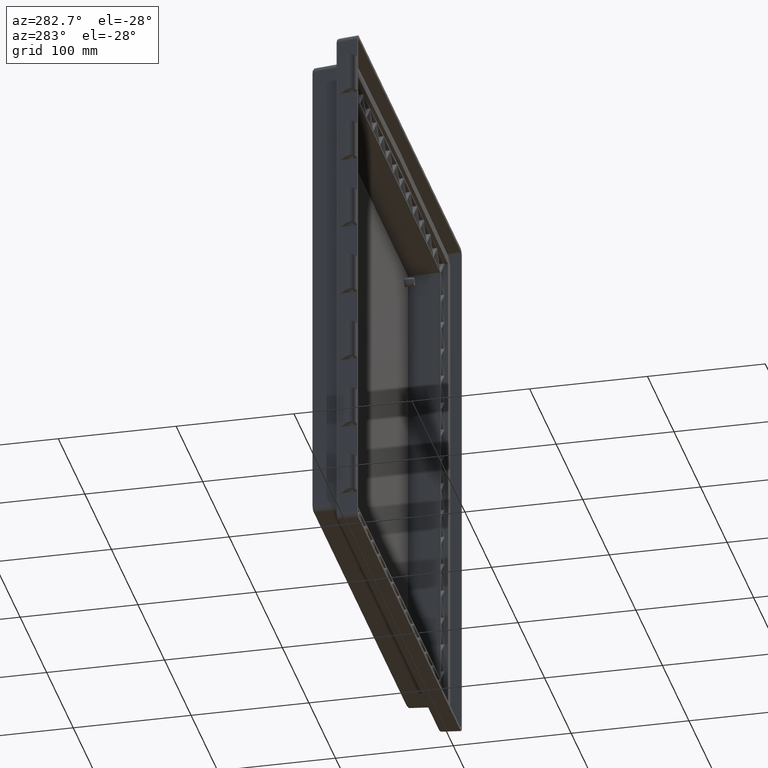
[diagram: clean part render]
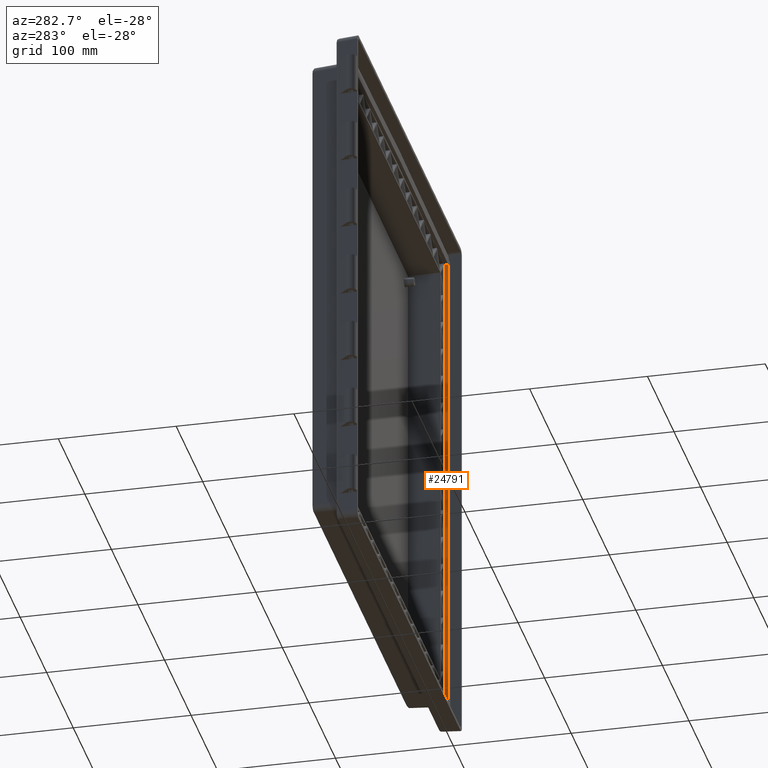
[diagram: same view with one face highlighted and labeled with its STEP entity id]
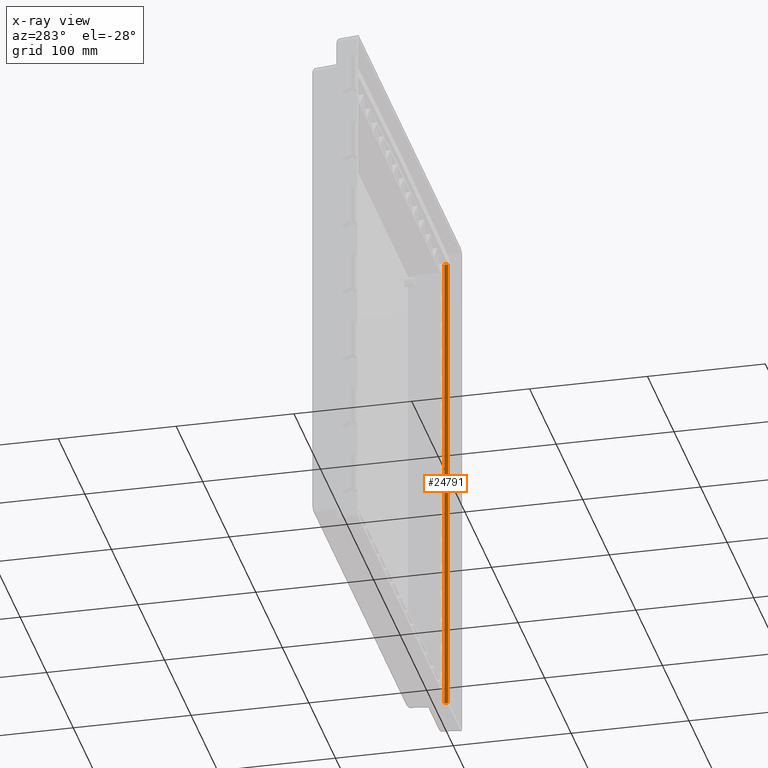
[diagram: x-ray of the same camera — body ghosted, the highlighted face saturated]
A machine part, auxiliary view. The second image highlights one B-rep face of the part: STEP entity #24791.
The next image is the same camera in x-ray: the body ghosted, the highlighted face saturated — about 0% of this face is hidden behind the body in this view.
In plain terms, the highlighted planar face has unit normal (1, 0, -0).
Its self-contained STEP definition (entity closure, byte-faithful):
#13902 = DIRECTION ( 'NONE',  ( 0.0000000000000000000, -1.000000000000000000, 0.0000000000000000000 ) ) ;
#13903 = VECTOR ( 'NONE', #13902, 1000.000000000000000 ) ;
#13904 = CARTESIAN_POINT ( 'NONE',  ( 179.9694821496557000, 500000.0000000000600, 205.5977549835308500 ) ) ;
#13905 = LINE ( 'NONE', #13904, #13903 ) ;
#13906 = CARTESIAN_POINT ( 'NONE',  ( 179.9694821496557000, 0.0000000000000000000, 205.5977549835308500 ) ) ;
#13907 = DIRECTION ( 'NONE',  ( 0.0000000000000000000, 0.0000000000000000000, 1.000000000000000000 ) ) ;
#13908 = VECTOR ( 'NONE', #13907, 1000.000000000000000 ) ;
#13909 = CARTESIAN_POINT ( 'NONE',  ( 179.9694821496557000, 0.0000000000000000000, -205.6016638847296500 ) ) ;
#13915 = LINE ( 'NONE', #13909, #13908 ) ;
#13916 = DIRECTION ( 'NONE',  ( -0.0000000000000000000, 0.0000000000000000000, -1.000000000000000000 ) ) ;
#13917 = DIRECTION ( 'NONE',  ( 1.000000000000000000, 0.0000000000000000000, -0.0000000000000000000 ) ) ;
#13918 = AXIS2_PLACEMENT_3D ( 'NONE', #13919, #13917, #13916 ) ;
#13919 = CARTESIAN_POINT ( 'NONE',  ( 179.9694821496557000, 500000.0000000000600, -205.6016638847296500 ) ) ;
#13920 = PLANE ( 'NONE',  #13918 ) ;
#13925 = FACE_OUTER_BOUND ( 'NONE', #24792, .T. ) ;
#13977 = CARTESIAN_POINT ( 'NONE',  ( 179.9694821496557000, 0.0000000000000000000, -205.6016638847296500 ) ) ;
#13978 = DIRECTION ( 'NONE',  ( 0.0000000000000000000, -1.000000000000000000, 0.0000000000000000000 ) ) ;
#13979 = VECTOR ( 'NONE', #13978, 1000.000000000000000 ) ;
#13980 = CARTESIAN_POINT ( 'NONE',  ( 179.9694821496557000, 500000.0000000000600, -205.6016638847296500 ) ) ;
#13981 = LINE ( 'NONE', #13980, #13979 ) ;
#18647 = EDGE_CURVE ( 'NONE', #18648, #18649, #31149, .T. ) ;
#18648 = VERTEX_POINT ( 'NONE', #31145 ) ;
#18649 = VERTEX_POINT ( 'NONE', #31144 ) ;
#24772 = ORIENTED_EDGE ( 'NONE', *, *, #24773, .T. ) ;
#24773 = EDGE_CURVE ( 'NONE', #24796, #24774, #13915, .T. ) ;
#24774 = VERTEX_POINT ( 'NONE', #13906 ) ;
#24775 = ORIENTED_EDGE ( 'NONE', *, *, #24776, .F. ) ;
#24776 = EDGE_CURVE ( 'NONE', #18649, #24774, #13905, .T. ) ;
#24791 = ADVANCED_FACE ( 'NONE', ( #13925 ), #13920, .F. ) ;
#24792 = EDGE_LOOP ( 'NONE', ( #24793, #24794, #24772, #24775 ) ) ;
#24793 = ORIENTED_EDGE ( 'NONE', *, *, #18647, .F. ) ;
#24794 = ORIENTED_EDGE ( 'NONE', *, *, #24795, .T. ) ;
#24795 = EDGE_CURVE ( 'NONE', #18648, #24796, #13981, .T. ) ;
#24796 = VERTEX_POINT ( 'NONE', #13977 ) ;
#31144 = CARTESIAN_POINT ( 'NONE',  ( 179.9694821496557000, 3.000000000099589700, 205.5977549835308500 ) ) ;
#31145 = CARTESIAN_POINT ( 'NONE',  ( 179.9694821496557000, 3.000000000099589700, -205.6016638847296700 ) ) ;
#31146 = DIRECTION ( 'NONE',  ( 0.0000000000000000000, -0.0000000000000000000, 1.000000000000000000 ) ) ;
#31147 = VECTOR ( 'NONE', #31146, 1000.000000000000000 ) ;
#31148 = CARTESIAN_POINT ( 'NONE',  ( 179.9694821496557000, 2.999999999985902800, -205.6016638847296500 ) ) ;
#31149 = LINE ( 'NONE', #31148, #31147 ) ;